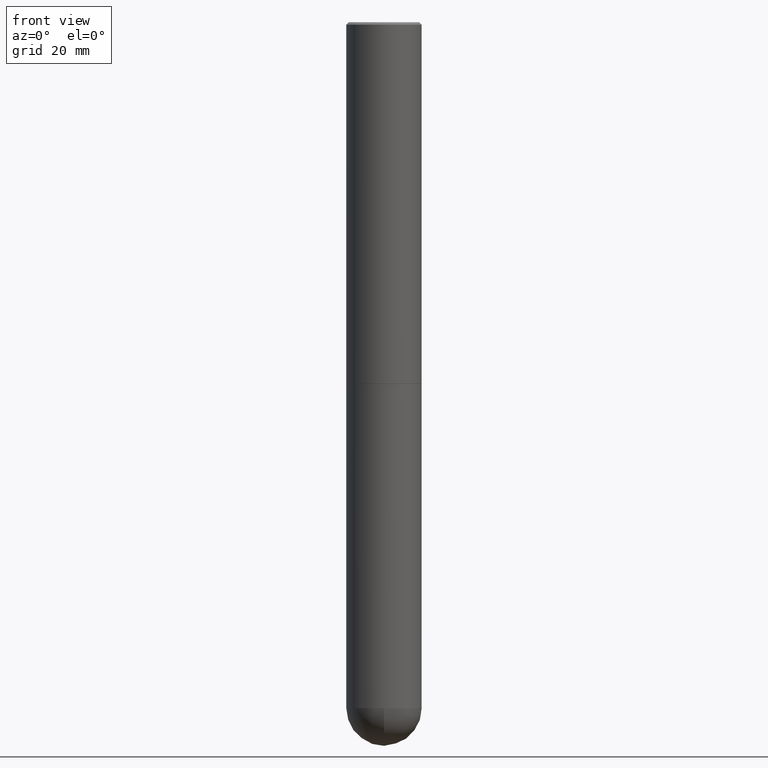
[diagram: clean part render]
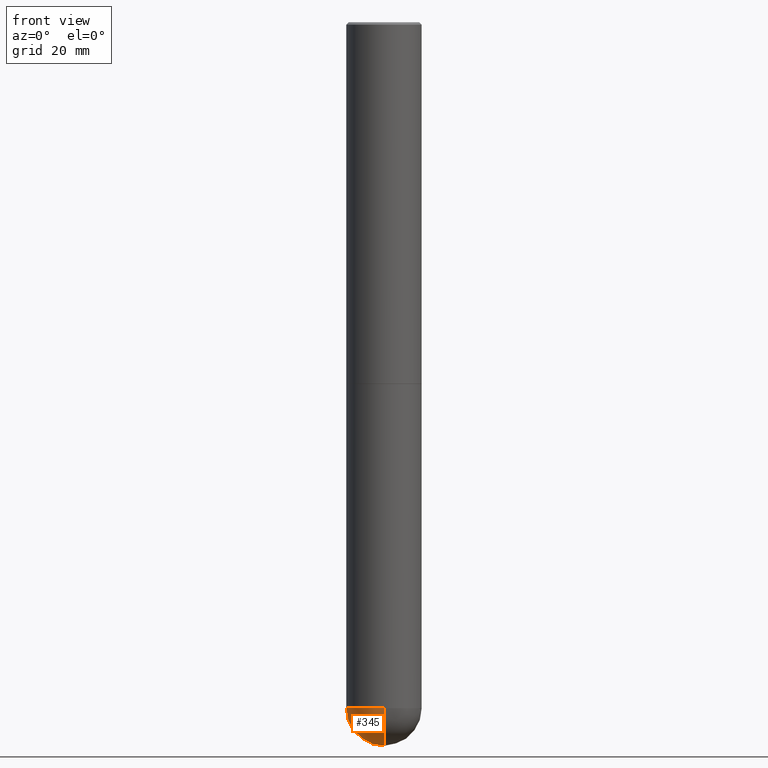
[diagram: same view with one face highlighted and labeled with its STEP entity id]
A machine part, front view. The second image highlights one B-rep face of the part: STEP entity #345.
In plain terms, the highlighted spherical surface has radius 7.9375 mm.
Its self-contained STEP definition (entity closure, byte-faithful):
#3 = AXIS2_PLACEMENT_3D ( 'NONE', #399, #255, #392 ) ;
#11 = CIRCLE ( 'NONE', #314, 0.3124999999999994449 ) ;
#13 = CARTESIAN_POINT ( 'NONE',  ( -2.220446049250173452E-15, -0.3125000000000198175, -5.687500000000000888 ) ) ;
#17 = ORIENTED_EDGE ( 'NONE', *, *, #19, .T. ) ;
#18 = AXIS2_PLACEMENT_3D ( 'NONE', #271, #124, #269 ) ;
#19 = EDGE_CURVE ( 'NONE', #21, #48, #32, .T. ) ;
#21 = VERTEX_POINT ( 'NONE', #134 ) ;
#24 = DIRECTION ( 'NONE',  ( -1.000000000000000000, 6.982962677686265922E-15, -4.883557194083112901E-29 ) ) ;
#32 = CIRCLE ( 'NONE', #286, 0.3124999999999994449 ) ;
#34 = EDGE_LOOP ( 'NONE', ( #171, #17, #173, #116 ) ) ;
#48 = VERTEX_POINT ( 'NONE', #13 ) ;
#52 = DIRECTION ( 'NONE',  ( -7.105427357601000281E-15, -1.000000000000000000, 0.000000000000000000 ) ) ;
#61 = EDGE_CURVE ( 'NONE', #359, #48, #225, .T. ) ;
#85 = AXIS2_PLACEMENT_3D ( 'NONE', #198, #24, #263 ) ;
#107 = DIRECTION ( 'NONE',  ( -1.000000000000000000, 7.105427357601001070E-15, -4.926315508542082329E-29 ) ) ;
#116 = ORIENTED_EDGE ( 'NONE', *, *, #180, .F. ) ;
#124 = DIRECTION ( 'NONE',  ( -2.445468806185136597E-29, 3.491481338843145583E-15, 1.000000000000000000 ) ) ;
#134 = CARTESIAN_POINT ( 'NONE',  ( 1.435505503246536289E-28, -2.140393529496224958E-14, -6.000000000000000888 ) ) ;
#171 = ORIENTED_EDGE ( 'NONE', *, *, #229, .F. ) ;
#172 = SPHERICAL_SURFACE ( 'NONE', #85, 0.3124999999999994449 ) ;
#173 = ORIENTED_EDGE ( 'NONE', *, *, #61, .F. ) ;
#180 = EDGE_CURVE ( 'NONE', #396, #359, #274, .T. ) ;
#198 = CARTESIAN_POINT ( 'NONE',  ( 1.357748405726408151E-28, -2.033198248281044620E-14, -5.687500000000000888 ) ) ;
#213 = CARTESIAN_POINT ( 'NONE',  ( 1.357748405726408151E-28, -2.033198248281044620E-14, -5.687500000000000888 ) ) ;
#225 = CIRCLE ( 'NONE', #3, 0.3125000000000000000 ) ;
#229 = EDGE_CURVE ( 'NONE', #21, #396, #11, .T. ) ;
#239 = CARTESIAN_POINT ( 'NONE',  ( -0.3125000000000000000, -1.294567601634960462E-14, -5.687500000000001776 ) ) ;
#255 = DIRECTION ( 'NONE',  ( -2.445468806185136597E-29, 3.491481338843145583E-15, 1.000000000000000000 ) ) ;
#260 = CARTESIAN_POINT ( 'NONE',  ( 1.357748405726408151E-28, -2.033198248281044620E-14, -5.687500000000000888 ) ) ;
#263 = DIRECTION ( 'NONE',  ( 6.982962677686265922E-15, 1.000000000000000000, -3.496765431890262836E-15 ) ) ;
#269 = DIRECTION ( 'NONE',  ( 1.000000000000000000, -6.982962677686262766E-15, 0.000000000000000000 ) ) ;
#271 = CARTESIAN_POINT ( 'NONE',  ( 1.390860383517796888E-28, -1.985780011467040063E-14, -5.687500000000001776 ) ) ;
#274 = CIRCLE ( 'NONE', #18, 0.3125000000000000000 ) ;
#286 = AXIS2_PLACEMENT_3D ( 'NONE', #260, #107, #52 ) ;
#300 = FACE_OUTER_BOUND ( 'NONE', #34, .T. ) ;
#301 = DIRECTION ( 'NONE',  ( 1.000000000000000000, -6.982962677686265922E-15, 4.883557194083112340E-29 ) ) ;
#314 = AXIS2_PLACEMENT_3D ( 'NONE', #213, #301, #403 ) ;
#345 = ADVANCED_FACE ( 'NONE', ( #300 ), #172, .T. ) ;
#349 = CARTESIAN_POINT ( 'NONE',  ( 2.182175836777093637E-15, 0.3124999999999796829, -5.687500000000003553 ) ) ;
#359 = VERTEX_POINT ( 'NONE', #239 ) ;
#392 = DIRECTION ( 'NONE',  ( 1.000000000000000000, -6.982962677686262766E-15, 0.000000000000000000 ) ) ;
#396 = VERTEX_POINT ( 'NONE', #349 ) ;
#399 = CARTESIAN_POINT ( 'NONE',  ( 1.390860383517796888E-28, -1.985780011467040063E-14, -5.687500000000001776 ) ) ;
#403 = DIRECTION ( 'NONE',  ( 6.982962677686266711E-15, 1.000000000000000000, 0.000000000000000000 ) ) ;